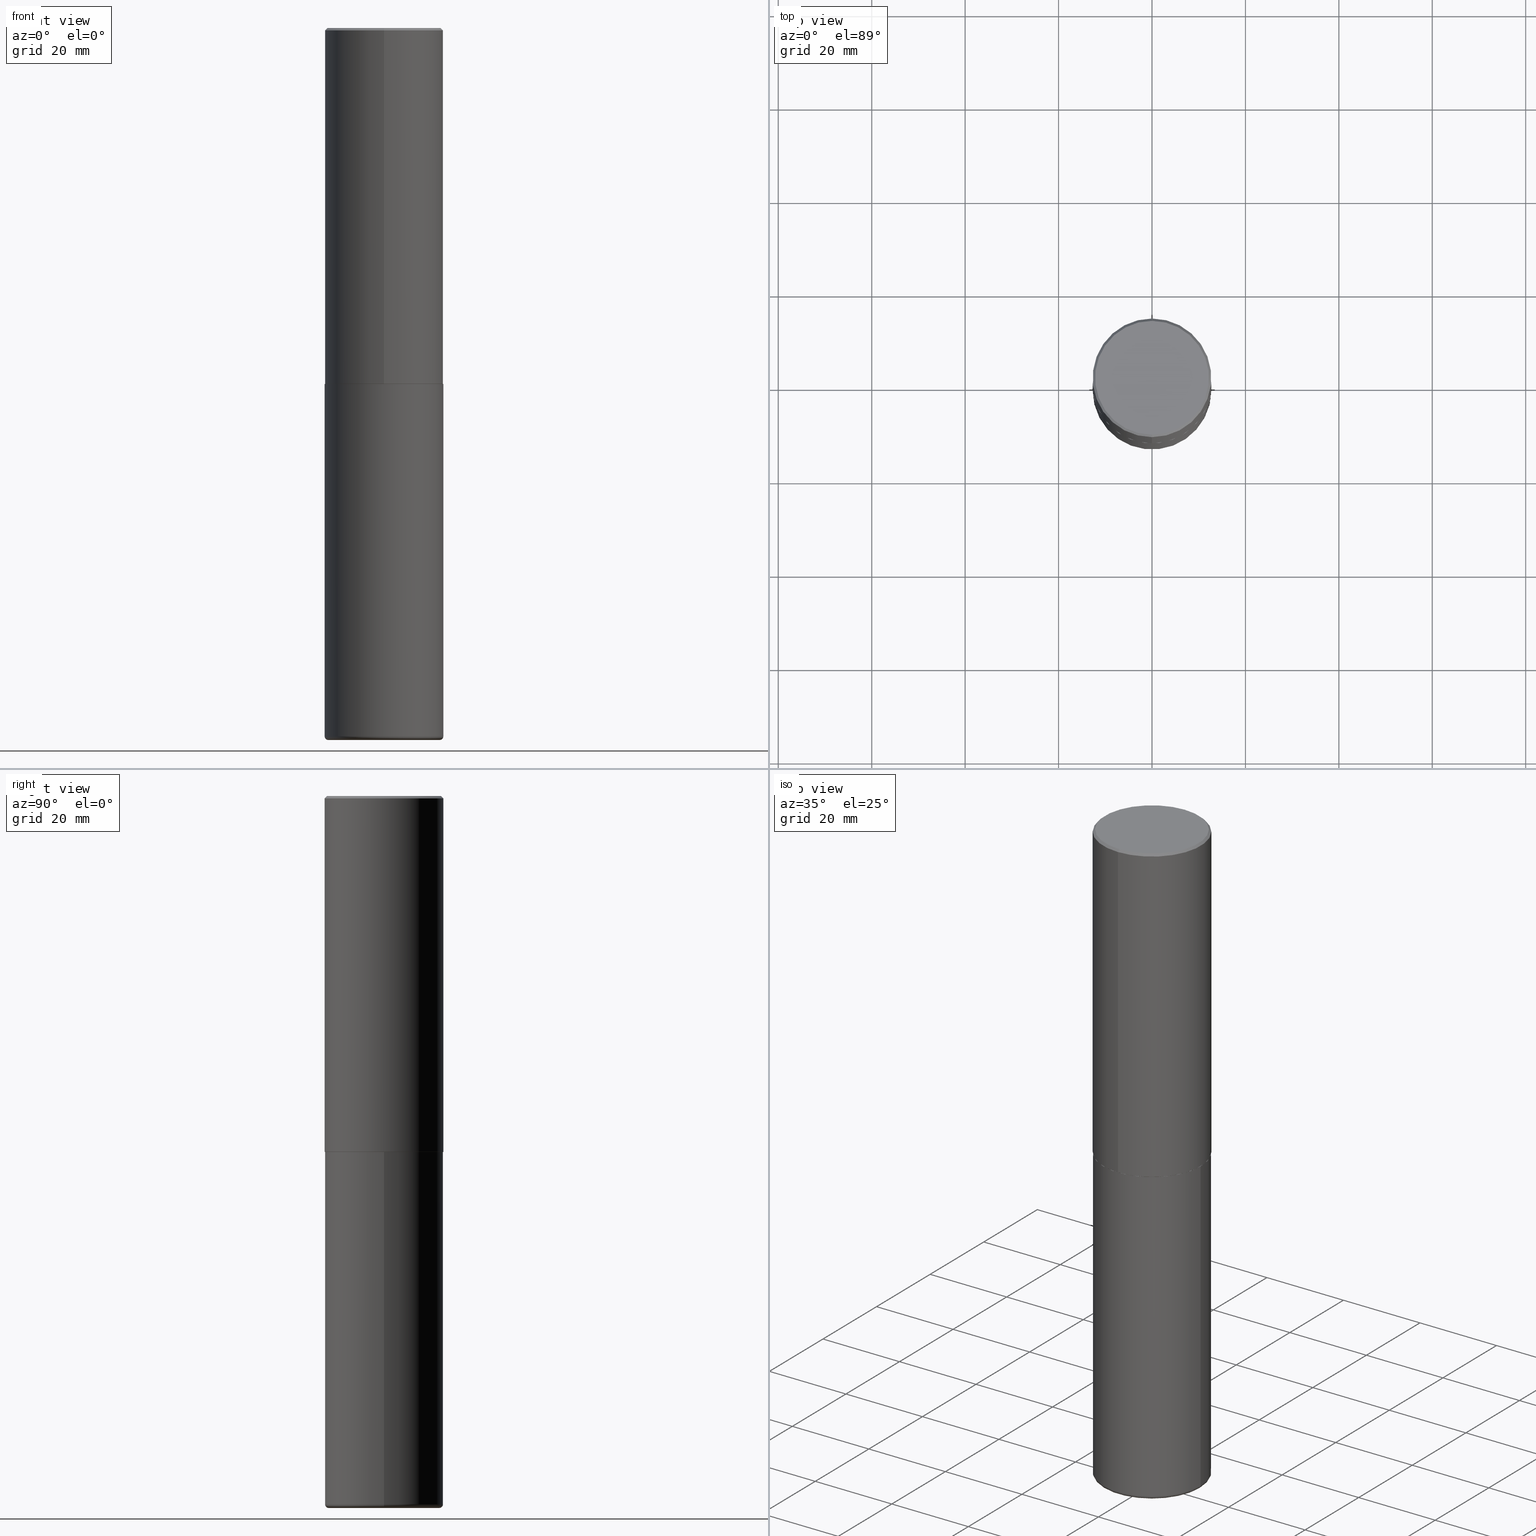
[diagram: canonical four-view strip — front | top / right | iso, engineering-drawing reading convention]
A machine part, canonical four-view strip (front | top / right | iso — engineering-drawing reading convention). The complete STEP part file that produces these views, byte-faithful:
ISO-10303-21;
HEADER;
FILE_DESCRIPTION (( 'STEP AP203' ),
    '1' );
FILE_NAME ('37711.STEP',
    '2024-03-02T08:55:26',
    ( '' ),
    ( '' ),
    'SwSTEP 2.0',
    'SolidWorks 2023',
    '' );
FILE_SCHEMA (( 'CONFIG_CONTROL_DESIGN' ));
ENDSEC;

DATA;
#1 = EDGE_CURVE ( 'NONE', #386, #226, #171, .T. ) ;
#2 = CARTESIAN_POINT ( 'NONE',  ( -3.430248998885764992E-15, -0.5000000000000001110, -0.01999999999999835937 ) ) ;
#3 = ORIENTED_EDGE ( 'NONE', *, *, #370, .T. ) ;
#4 = EDGE_CURVE ( 'NONE', #265, #143, #275, .T. ) ;
#5 = CARTESIAN_POINT ( 'NONE',  ( 7.332249203065438921E-29, -1.047340385386834930E-14, -2.999000000000000554 ) ) ;
#6 = CARTESIAN_POINT ( 'NONE',  ( 0.000000000000000000, 0.000000000000000000, 0.000000000000000000 ) ) ;
#7 = VERTEX_POINT ( 'NONE', #401 ) ;
#8 = SHAPE_DEFINITION_REPRESENTATION ( #118, #335 ) ;
#9 = CYLINDRICAL_SURFACE ( 'NONE', #248, 0.5000000000000000000 ) ;
#10 = DATE_AND_TIME ( #366, #378 ) ;
#11 = EDGE_LOOP ( 'NONE', ( #325, #292, #204, #389 ) ) ;
#12 = ADVANCED_FACE ( 'NONE', ( #45 ), #183, .T. ) ;
#13 = AXIS2_PLACEMENT_3D ( 'NONE', #179, #369, #334 ) ;
#14 = AXIS2_PLACEMENT_3D ( 'NONE', #288, #351, #189 ) ;
#15 = SECURITY_CLASSIFICATION_LEVEL ( 'unclassified' ) ;
#16 = ORIENTED_EDGE ( 'NONE', *, *, #205, .T. ) ;
#17 = EDGE_CURVE ( 'NONE', #265, #194, #102, .T. ) ;
#18 = ORIENTED_EDGE ( 'NONE', *, *, #26, .T. ) ;
#19 = DIRECTION ( 'NONE',  ( 1.000000000000000000, -6.982962677686263555E-15, 0.000000000000000000 ) ) ;
#20 = CONICAL_SURFACE ( 'NONE', #130, 0.4989999999999999991, 0.7853981633976873100 ) ;
#21 = CONICAL_SURFACE ( 'NONE', #368, 0.4989999999999999991, 0.7853981633976873100 ) ;
#22 = AXIS2_PLACEMENT_3D ( 'NONE', #361, #363, #237 ) ;
#23 = CARTESIAN_POINT ( 'NONE',  ( 0.000000000000000000, 0.000000000000000000, 0.000000000000000000 ) ) ;
#24 = CARTESIAN_POINT ( 'NONE',  ( 3.545608251442972496E-15, 0.4989999999999895630, -3.000000000000001776 ) ) ;
#25 = CARTESIAN_POINT ( 'NONE',  ( 7.334694101099137475E-29, -1.047689615258587837E-14, -3.000000000000000444 ) ) ;
#26 = EDGE_CURVE ( 'NONE', #81, #226, #414, .T. ) ;
#27 = CARTESIAN_POINT ( 'NONE',  ( 3.549160965121773789E-15, 0.4989999999999895630, -3.000000000000001776 ) ) ;
#28 = CC_DESIGN_PERSON_AND_ORGANIZATION_ASSIGNMENT ( #270, #170, ( #116 ) ) ;
#29 = CARTESIAN_POINT ( 'NONE',  ( -0.4699999999999999734, -1.750459273482110708E-14, -5.969999999999999751 ) ) ;
#30 = EDGE_CURVE ( 'NONE', #202, #224, #193, .T. ) ;
#31 = DIRECTION ( 'NONE',  ( -2.445468806185136877E-29, 3.491481338843145188E-15, 1.000000000000000000 ) ) ;
#32 = EDGE_LOOP ( 'NONE', ( #67, #328 ) ) ;
#33 = CARTESIAN_POINT ( 'NONE',  ( -0.5000000000000000000, 3.552713678800500929E-15, -2.459467545127452891E-29 ) ) ;
#34 = EDGE_LOOP ( 'NONE', ( #323, #196, #141, #391 ) ) ;
#35 = AXIS2_PLACEMENT_3D ( 'NONE', #50, #107, #233 ) ;
#36 = CARTESIAN_POINT ( 'NONE',  ( -3.491481338843133750E-15, -0.5000000000000001110, 1.746149358764313390E-15 ) ) ;
#37 = EDGE_LOOP ( 'NONE', ( #223, #158, #173, #192 ) ) ;
#38 = DIRECTION ( 'NONE',  ( 2.444898033699712212E-29, -3.492298717528625990E-15, -1.000000000000000000 ) ) ;
#39 = ORIENTED_EDGE ( 'NONE', *, *, #47, .F. ) ;
#40 = COORDINATED_UNIVERSAL_TIME_OFFSET ( 5, 0, .BEHIND. ) ;
#41 = ORIENTED_EDGE ( 'NONE', *, *, #272, .F. ) ;
#42 = DIRECTION ( 'NONE',  ( -2.445468806185136877E-29, 3.491481338843145188E-15, 1.000000000000000000 ) ) ;
#43 = CALENDAR_DATE ( 2024, 2, 3 ) ;
#44 = CARTESIAN_POINT ( 'NONE',  ( 0.000000000000000000, 0.000000000000000000, 0.000000000000000000 ) ) ;
#45 = FACE_OUTER_BOUND ( 'NONE', #11, .T. ) ;
#46 = VECTOR ( 'NONE', #119, 39.37007874015748143 ) ;
#47 = EDGE_CURVE ( 'NONE', #320, #143, #68, .T. ) ;
#48 = CIRCLE ( 'NONE', #14, 0.4699999999999999734 ) ;
#49 = DIRECTION ( 'NONE',  ( 0.000000000000000000, 0.000000000000000000, 1.000000000000000000 ) ) ;
#50 = CARTESIAN_POINT ( 'NONE',  ( -2.514251026725007597E-45, 3.591362713352002573E-31, 1.028366415314403880E-16 ) ) ;
#51 = DIRECTION ( 'NONE',  ( 6.982962677686265922E-15, 1.000000000000000000, -3.491643216902136408E-15 ) ) ;
#52 = DIRECTION ( 'NONE',  ( -2.444898033699712212E-29, 3.492298717528625990E-15, 1.000000000000000000 ) ) ;
#53 = AXIS2_PLACEMENT_3D ( 'NONE', #147, #404, #51 ) ;
#54 = APPROVAL_PERSON_ORGANIZATION ( #144, #99, #76 ) ;
#55 = DESIGN_CONTEXT ( 'detailed design', #120, 'design' ) ;
#56 = TOROIDAL_SURFACE ( 'NONE', #256, 0.4699999999999999734, 0.03000000000000077258 ) ;
#57 = DIRECTION ( 'NONE',  ( 2.438088387897960049E-29, -3.491481338843145188E-15, -1.000000000000000000 ) ) ;
#58 = DIRECTION ( 'NONE',  ( -2.445468806185136597E-29, 3.491481338843145583E-15, 1.000000000000000000 ) ) ;
#59 = PERSON ( 'UNSPECIFIED', 'UNSPECIFIED', 'UNSPECIFIED', ('UNSPECIFIED'), ('UNSPECIFIED'), ('UNSPECIFIED') ) ;
#60 = CYLINDRICAL_SURFACE ( 'NONE', #149, 0.5000000000000001110 ) ;
#61 = ADVANCED_FACE ( 'NONE', ( #301 ), #9, .T. ) ;
#62 = CARTESIAN_POINT ( 'NONE',  ( -3.484498376165373188E-15, -0.4990000000000104352, -2.999999999999998668 ) ) ;
#63 = ADVANCED_FACE ( 'NONE', ( #240 ), #56, .T. ) ;
#64 = DIRECTION ( 'NONE',  ( -4.937700262165728178E-15, -0.7071067811867141062, 0.7071067811863809283 ) ) ;
#65 = ORIENTED_EDGE ( 'NONE', *, *, #205, .F. ) ;
#66 = LENGTH_MEASURE_WITH_UNIT ( LENGTH_MEASURE( 0.02539999999999999897 ), #291 );
#67 = ORIENTED_EDGE ( 'NONE', *, *, #17, .T. ) ;
#68 = CIRCLE ( 'NONE', #276, 0.5000000000000000000 ) ;
#69 = LINE ( 'NONE', #36, #309 ) ;
#70 = APPROVAL_PERSON_ORGANIZATION ( #203, #411, #296 ) ;
#71 = EDGE_LOOP ( 'NONE', ( #393, #258, #164, #168 ) ) ;
#72 = FACE_OUTER_BOUND ( 'NONE', #267, .T. ) ;
#73 = EDGE_LOOP ( 'NONE', ( #138, #262, #384, #367 ) ) ;
#74 = APPLICATION_PROTOCOL_DEFINITION ( 'international standard', 'config_control_design', 1994, #380 ) ;
#75 = CC_DESIGN_PERSON_AND_ORGANIZATION_ASSIGNMENT ( #232, #105, ( #221 ) ) ;
#76 = APPROVAL_ROLE ( '' ) ;
#77 = CIRCLE ( 'NONE', #394, 0.4999999999999999445 ) ;
#78 = CARTESIAN_POINT ( 'NONE',  ( 4.889796067399450837E-31, -6.984597435057287381E-17, -0.02000000000000010797 ) ) ;
#79 = CONICAL_SURFACE ( 'NONE', #53, 0.5000000000000000000, 0.7853981633974446153 ) ;
#80 = EDGE_CURVE ( 'NONE', #143, #320, #111, .T. ) ;
#81 = VERTEX_POINT ( 'NONE', #339 ) ;
#82 = COORDINATED_UNIVERSAL_TIME_OFFSET ( 5, 0, .BEHIND. ) ;
#83 = ORIENTED_EDGE ( 'NONE', *, *, #148, .F. ) ;
#84 = ADVANCED_FACE ( 'NONE', ( #279 ), #407, .T. ) ;
#85 = DATE_AND_TIME ( #359, #235 ) ;
#86 = ADVANCED_FACE ( 'NONE', ( #92 ), #79, .T. ) ;
#87 = DIRECTION ( 'NONE',  ( -6.982962677686265922E-15, -1.000000000000000000, 3.491643216902136408E-15 ) ) ;
#88 = CARTESIAN_POINT ( 'NONE',  ( 3.351822085289407153E-15, 0.4799999999999999267, -1.624885063648019971E-15 ) ) ;
#89 = CC_DESIGN_PERSON_AND_ORGANIZATION_ASSIGNMENT ( #231, #264, ( #150 ) ) ;
#90 = CARTESIAN_POINT ( 'NONE',  ( -3.361644018908049661E-15, -0.4799999999999999267, 1.779140025945180744E-15 ) ) ;
#91 = DIRECTION ( 'NONE',  ( -6.982962677686266711E-15, -1.000000000000000000, 3.491481338843145583E-15 ) ) ;
#92 = FACE_OUTER_BOUND ( 'NONE', #71, .T. ) ;
#93 = DIRECTION ( 'NONE',  ( 2.438088387897960049E-29, -3.491481338843145188E-15, -1.000000000000000000 ) ) ;
#94 = ADVANCED_FACE ( 'NONE', ( #151 ), #60, .T. ) ;
#95 = CLOSED_SHELL ( 'NONE', ( #84, #63, #219, #61, #12, #234 ) ) ;
#96 = VECTOR ( 'NONE', #31, 39.37007874015748143 ) ;
#97 = CARTESIAN_POINT ( 'NONE',  ( -3.484498376165373188E-15, -0.4990000000000104352, -2.999999999999998668 ) ) ;
#98 = VERTEX_POINT ( 'NONE', #218 ) ;
#99 = APPROVAL ( #392, 'UNSPECIFIED' ) ;
#100 = EDGE_LOOP ( 'NONE', ( #413, #16, #39, #353 ) ) ;
#101 = CARTESIAN_POINT ( 'NONE',  ( 0.5000000000000003331, -2.433562493173670954E-14, -5.969999999999999751 ) ) ;
#102 = CIRCLE ( 'NONE', #35, 0.4799999999999999267 ) ;
#103 =( NAMED_UNIT ( * ) SI_UNIT ( $, .STERADIAN. ) SOLID_ANGLE_UNIT ( ) );
#104 = EDGE_LOOP ( 'NONE', ( #417, #3, #229, #83 ) ) ;
#105 = PERSON_AND_ORGANIZATION_ROLE ( 'creator' ) ;
#106 = PERSON_AND_ORGANIZATION ( #59, #277 ) ;
#107 = DIRECTION ( 'NONE',  ( -2.444898033699712212E-29, 3.492298717528625990E-15, 1.000000000000000000 ) ) ;
#108 = EDGE_CURVE ( 'NONE', #135, #202, #315, .T. ) ;
#109 = COORDINATED_UNIVERSAL_TIME_OFFSET ( 5, 0, .BEHIND. ) ;
#110 = APPROVAL ( #142, 'UNSPECIFIED' ) ;
#111 = CIRCLE ( 'NONE', #290, 0.5000000000000000000 ) ;
#112 = APPROVAL_ROLE ( '' ) ;
#113 = DIRECTION ( 'NONE',  ( 1.000000000000000000, -6.982962677686266711E-15, 4.876176775795935793E-29 ) ) ;
#114 = ORIENTED_EDGE ( 'NONE', *, *, #30, .T. ) ;
#115 = CARTESIAN_POINT ( 'NONE',  ( 1.459944877292526494E-28, -2.084414359289357934E-14, -5.969999999999999751 ) ) ;
#116 = PRODUCT ( '37711', '37711', '', ( #388 ) ) ;
#117 = FACE_OUTER_BOUND ( 'NONE', #382, .T. ) ;
#118 = PRODUCT_DEFINITION_SHAPE ( 'NONE', 'NONE',  #221 ) ;
#119 = DIRECTION ( 'NONE',  ( -2.444898033699711931E-29, 3.492298717528626385E-15, 1.000000000000000000 ) ) ;
#120 = APPLICATION_CONTEXT ( 'configuration controlled 3d designs of mechanical parts and assemblies' ) ;
#121 = CARTESIAN_POINT ( 'NONE',  ( 3.491481338843133355E-15, 0.4999999999999999445, -0.02000000000000185310 ) ) ;
#122 = CIRCLE ( 'NONE', #289, 0.03000000000000077258 ) ;
#123 = LOCAL_TIME ( 3, 55, 26.00000000000000000, #305 ) ;
#124 = PLANE ( 'NONE',  #254 ) ;
#125 = DIRECTION ( 'NONE',  ( 5.024295867789263036E-15, 0.7071067811867189912, 0.7071067811863760433 ) ) ;
#126 = DIRECTION ( 'NONE',  ( -6.982962677686266711E-15, -1.000000000000000000, 3.278217592397114284E-15 ) ) ;
#127 = ORIENTED_EDGE ( 'NONE', *, *, #80, .F. ) ;
#128 = CIRCLE ( 'NONE', #362, 0.4699999999999999734 ) ;
#129 = FACE_OUTER_BOUND ( 'NONE', #34, .T. ) ;
#130 = AXIS2_PLACEMENT_3D ( 'NONE', #247, #410, #251 ) ;
#131 = EDGE_LOOP ( 'NONE', ( #358, #175, #190, #145 ) ) ;
#132 = ORIENTED_EDGE ( 'NONE', *, *, #312, .F. ) ;
#133 = EDGE_CURVE ( 'NONE', #7, #386, #343, .T. ) ;
#134 = DIRECTION ( 'NONE',  ( 1.000000000000000000, -6.982962677686266711E-15, 0.000000000000000000 ) ) ;
#135 = VERTEX_POINT ( 'NONE', #27 ) ;
#136 = AXIS2_PLACEMENT_3D ( 'NONE', #195, #165, #134 ) ;
#137 = CARTESIAN_POINT ( 'NONE',  ( 7.334694101099137475E-29, -1.047689615258587837E-14, -3.000000000000000444 ) ) ;
#138 = ORIENTED_EDGE ( 'NONE', *, *, #403, .F. ) ;
#139 = DATE_TIME_ROLE ( 'creation_date' ) ;
#140 = EDGE_LOOP ( 'NONE', ( #307, #18 ) ) ;
#141 = ORIENTED_EDGE ( 'NONE', *, *, #297, .T. ) ;
#142 = APPROVAL_STATUS ( 'not_yet_approved' ) ;
#143 = VERTEX_POINT ( 'NONE', #121 ) ;
#144 = PERSON_AND_ORGANIZATION ( #59, #277 ) ;
#145 = ORIENTED_EDGE ( 'NONE', *, *, #297, .F. ) ;
#146 = CARTESIAN_POINT ( 'NONE',  ( 0.5000000000000000000, -3.491481338843133355E-15, 2.438088387897967896E-29 ) ) ;
#147 = CARTESIAN_POINT ( 'NONE',  ( 4.889796067399450837E-31, -6.984597435057287381E-17, -0.02000000000000010797 ) ) ;
#148 = EDGE_CURVE ( 'NONE', #98, #386, #122, .T. ) ;
#149 = AXIS2_PLACEMENT_3D ( 'NONE', #278, #345, #187 ) ;
#150 = SECURITY_CLASSIFICATION ( '', '', #15 ) ;
#151 = FACE_OUTER_BOUND ( 'NONE', #100, .T. ) ;
#152 = CARTESIAN_POINT ( 'NONE',  ( -3.491481338843061569E-15, -0.5000000000000107692, -2.998999999999998778 ) ) ;
#153 = DIRECTION ( 'NONE',  ( -6.982962677686265922E-15, -1.000000000000000000, 3.284787166730577015E-15 ) ) ;
#154 = AXIS2_PLACEMENT_3D ( 'NONE', #313, #57, #185 ) ;
#155 = CARTESIAN_POINT ( 'NONE',  ( 0.000000000000000000, 0.000000000000000000, 0.000000000000000000 ) ) ;
#156 = CC_DESIGN_PERSON_AND_ORGANIZATION_ASSIGNMENT ( #300, #327, ( #330 ) ) ;
#157 = CARTESIAN_POINT ( 'NONE',  ( 7.334694101099137475E-29, -1.047689615258587837E-14, -3.000000000000000444 ) ) ;
#158 = ORIENTED_EDGE ( 'NONE', *, *, #403, .T. ) ;
#159 = DIRECTION ( 'NONE',  ( -6.982962677686265922E-15, -1.000000000000000000, 3.284787166730577015E-15 ) ) ;
#160 = CIRCLE ( 'NONE', #337, 0.4989999999999999991 ) ;
#161 = PLANE ( 'NONE',  #255 ) ;
#162 = AXIS2_PLACEMENT_3D ( 'NONE', #280, #58, #19 ) ;
#163 = ADVANCED_FACE ( 'NONE', ( #285 ), #20, .T. ) ;
#164 = ORIENTED_EDGE ( 'NONE', *, *, #47, .T. ) ;
#165 = DIRECTION ( 'NONE',  ( -2.445468806185136597E-29, 3.491481338843145583E-15, 1.000000000000000000 ) ) ;
#166 = VERTEX_POINT ( 'NONE', #181 ) ;
#167 = DIRECTION ( 'NONE',  ( -4.851104656540946131E-15, -0.7071067811865473507, -0.7071067811865476838 ) ) ;
#168 = ORIENTED_EDGE ( 'NONE', *, *, #4, .F. ) ;
#169 = ADVANCED_FACE ( 'NONE', ( #374 ), #340, .F. ) ;
#170 = PERSON_AND_ORGANIZATION_ROLE ( 'design_owner' ) ;
#171 = LINE ( 'NONE', #146, #329 ) ;
#172 = APPLICATION_PROTOCOL_DEFINITION ( 'international standard', 'config_control_design', 1994, #120 ) ;
#173 = ORIENTED_EDGE ( 'NONE', *, *, #347, .F. ) ;
#174 = APPROVAL_DATE_TIME ( #197, #411 ) ;
#175 = ORIENTED_EDGE ( 'NONE', *, *, #108, .T. ) ;
#176 = CLOSED_SHELL ( 'NONE', ( #163, #94, #86, #284, #180, #372, #409, #169 ) ) ;
#177 = DIRECTION ( 'NONE',  ( -2.444898033699712212E-29, 3.492298717528625990E-15, 1.000000000000000000 ) ) ;
#178 = LOCAL_TIME ( 3, 55, 26.00000000000000000, #82 ) ;
#179 = CARTESIAN_POINT ( 'NONE',  ( 7.332249203065438921E-29, -1.047340385386834930E-14, -2.999000000000000554 ) ) ;
#180 = ADVANCED_FACE ( 'NONE', ( #117 ), #406, .T. ) ;
#181 = CARTESIAN_POINT ( 'NONE',  ( -0.4699999999999999734, -1.745038354453973785E-14, -6.000000000000001776 ) ) ;
#182 = DIRECTION ( 'NONE',  ( 2.444898033699711371E-29, -3.492298717528626385E-15, -1.000000000000000000 ) ) ;
#183 = TOROIDAL_SURFACE ( 'NONE', #321, 0.4699999999999999734, 0.03000000000000077258 ) ;
#184 = CIRCLE ( 'NONE', #136, 0.5000000000000000000 ) ;
#185 = DIRECTION ( 'NONE',  ( -1.000000000000000000, 6.982962677686265922E-15, -4.876176775795935793E-29 ) ) ;
#186 = DIRECTION ( 'NONE',  ( 1.000000000000000000, -6.982962677686217012E-15, 0.000000000000000000 ) ) ;
#187 = DIRECTION ( 'NONE',  ( -6.982962677686265922E-15, -1.000000000000000000, 3.492298717528625990E-15 ) ) ;
#188 = CARTESIAN_POINT ( 'NONE',  ( 1.467281283711082406E-28, -2.094888803305887902E-14, -6.000000000000001776 ) ) ;
#189 = DIRECTION ( 'NONE',  ( 1.000000000000000000, -6.982962677686262766E-15, 0.000000000000000000 ) ) ;
#190 = ORIENTED_EDGE ( 'NONE', *, *, #331, .F. ) ;
#191 = CARTESIAN_POINT ( 'NONE',  ( -3.430248998885764992E-15, -0.5000000000000001110, -0.01999999999999835937 ) ) ;
#192 = ORIENTED_EDGE ( 'NONE', *, *, #1, .F. ) ;
#193 = CIRCLE ( 'NONE', #13, 0.5000000000000002220 ) ;
#194 = VERTEX_POINT ( 'NONE', #90 ) ;
#195 = CARTESIAN_POINT ( 'NONE',  ( 7.336406418555409790E-29, -1.047444401652943635E-14, -3.000000000000000444 ) ) ;
#196 = ORIENTED_EDGE ( 'NONE', *, *, #211, .T. ) ;
#197 = DATE_AND_TIME ( #266, #123 ) ;
#198 = DIRECTION ( 'NONE',  ( -6.982962677686265922E-15, -1.000000000000000000, 3.491643216902136408E-15 ) ) ;
#199 = CIRCLE ( 'NONE', #282, 0.4799999999999999267 ) ;
#200 = CC_DESIGN_SECURITY_CLASSIFICATION ( #150, ( #330 ) ) ;
#201 = UNCERTAINTY_MEASURE_WITH_UNIT (LENGTH_MEASURE( 1.000000000000000082E-05 ), #385, 'distance_accuracy_value', 'NONE');
#202 = VERTEX_POINT ( 'NONE', #213 ) ;
#203 = PERSON_AND_ORGANIZATION ( #59, #277 ) ;
#204 = ORIENTED_EDGE ( 'NONE', *, *, #148, .T. ) ;
#205 = EDGE_CURVE ( 'NONE', #202, #143, #314, .T. ) ;
#206 = DIRECTION ( 'NONE',  ( -2.445468806185136597E-29, 3.491481338843145583E-15, 1.000000000000000000 ) ) ;
#207 = EDGE_CURVE ( 'NONE', #194, #265, #199, .T. ) ;
#208 = CONICAL_SURFACE ( 'NONE', #238, 0.5000000000000000000, 0.7853981633974446153 ) ;
#209 = DIRECTION ( 'NONE',  ( -2.444898033699712212E-29, 3.492298717528625990E-15, 1.000000000000000000 ) ) ;
#210 = AXIS2_PLACEMENT_3D ( 'NONE', #5, #376, #126 ) ;
#211 = EDGE_CURVE ( 'NONE', #135, #294, #160, .T. ) ;
#212 = DIRECTION ( 'NONE',  ( 1.000000000000000000, -6.982962677686266711E-15, 4.876176775795935793E-29 ) ) ;
#213 = CARTESIAN_POINT ( 'NONE',  ( 3.552713678800539584E-15, 0.4999999999999898970, -2.999000000000001886 ) ) ;
#214 = PRODUCT_RELATED_PRODUCT_CATEGORY ( 'detail', '', ( #116 ) ) ;
#215 = CARTESIAN_POINT ( 'NONE',  ( 0.4699999999999999734, -2.412613605140612280E-14, -5.969999999999999751 ) ) ;
#216 =( GEOMETRIC_REPRESENTATION_CONTEXT ( 3 ) GLOBAL_UNCERTAINTY_ASSIGNED_CONTEXT ( ( #201 ) ) GLOBAL_UNIT_ASSIGNED_CONTEXT ( ( #385, #259, #103 ) ) REPRESENTATION_CONTEXT ( 'NONE', 'WORKASPACE' ) );
#217 = AXIS2_PLACEMENT_3D ( 'NONE', #88, #182, #308 ) ;
#218 = CARTESIAN_POINT ( 'NONE',  ( 0.4699999999999999734, -2.423088049157142248E-14, -6.000000000000001776 ) ) ;
#219 = ADVANCED_FACE ( 'NONE', ( #250 ), #344, .F. ) ;
#220 = DIRECTION ( 'NONE',  ( -1.000000000000000000, 6.982962677686265922E-15, -4.876176775795935793E-29 ) ) ;
#221 = PRODUCT_DEFINITION ( 'UNKNOWN', '', #330, #55 ) ;
#222 = DIRECTION ( 'NONE',  ( -2.444898033699711931E-29, 3.492298717528626385E-15, 1.000000000000000000 ) ) ;
#223 = ORIENTED_EDGE ( 'NONE', *, *, #253, .T. ) ;
#224 = VERTEX_POINT ( 'NONE', #152 ) ;
#225 = LINE ( 'NONE', #191, #268 ) ;
#226 = VERTEX_POINT ( 'NONE', #281 ) ;
#227 = VECTOR ( 'NONE', #365, 39.37007874015748143 ) ;
#228 = CARTESIAN_POINT ( 'NONE',  ( 1.459944877292526494E-28, -2.084414359289357934E-14, -5.969999999999999751 ) ) ;
#229 = ORIENTED_EDGE ( 'NONE', *, *, #253, .F. ) ;
#230 = DIMENSIONAL_EXPONENTS ( 1.000000000000000000, 0.000000000000000000, 0.000000000000000000, 0.000000000000000000, 0.000000000000000000, 0.000000000000000000, 0.000000000000000000 ) ;
#231 = PERSON_AND_ORGANIZATION ( #59, #277 ) ;
#232 = PERSON_AND_ORGANIZATION ( #59, #277 ) ;
#233 = DIRECTION ( 'NONE',  ( -6.982962677686265922E-15, -1.000000000000000000, 3.492298717528625990E-15 ) ) ;
#234 = ADVANCED_FACE ( 'NONE', ( #408 ), #124, .T. ) ;
#235 = LOCAL_TIME ( 3, 55, 26.00000000000000000, #40 ) ;
#236 = COORDINATED_UNIVERSAL_TIME_OFFSET ( 5, 0, .BEHIND. ) ;
#237 = DIRECTION ( 'NONE',  ( 1.000000000000000000, -6.982962677686266711E-15, 0.000000000000000000 ) ) ;
#238 = AXIS2_PLACEMENT_3D ( 'NONE', #316, #38, #383 ) ;
#239 = PERSON_AND_ORGANIZATION_ROLE ( 'creator' ) ;
#240 = FACE_OUTER_BOUND ( 'NONE', #104, .T. ) ;
#241 = PERSON_AND_ORGANIZATION ( #59, #277 ) ;
#242 = CARTESIAN_POINT ( 'NONE',  ( 4.889796067399450837E-31, -6.984597435057287381E-17, -0.02000000000000010797 ) ) ;
#243 = DIRECTION ( 'NONE',  ( -2.445468806185136597E-29, 3.491481338843145583E-15, 1.000000000000000000 ) ) ;
#244 = DIRECTION ( 'NONE',  ( -2.444898033699712212E-29, 3.492298717528625990E-15, 1.000000000000000000 ) ) ;
#245 = EDGE_CURVE ( 'NONE', #294, #135, #311, .T. ) ;
#246 = CARTESIAN_POINT ( 'NONE',  ( 3.552713678800501718E-15, 0.5000000000000001110, -1.746149358764313390E-15 ) ) ;
#247 = CARTESIAN_POINT ( 'NONE',  ( 7.334694101099137475E-29, -1.047689615258587837E-14, -3.000000000000000444 ) ) ;
#248 = AXIS2_PLACEMENT_3D ( 'NONE', #44, #206, #113 ) ;
#249 = CC_DESIGN_APPROVAL ( #411, ( #221 ) ) ;
#250 = FACE_OUTER_BOUND ( 'NONE', #140, .T. ) ;
#251 = DIRECTION ( 'NONE',  ( -6.982962677686265922E-15, -1.000000000000000000, 3.284787166730577015E-15 ) ) ;
#252 = DIRECTION ( 'NONE',  ( -2.445468806185136597E-29, 3.491481338843145583E-15, 1.000000000000000000 ) ) ;
#253 = EDGE_CURVE ( 'NONE', #386, #7, #77, .T. ) ;
#254 = AXIS2_PLACEMENT_3D ( 'NONE', #375, #93, #220 ) ;
#255 = AXIS2_PLACEMENT_3D ( 'NONE', #257, #354, #322 ) ;
#256 = AXIS2_PLACEMENT_3D ( 'NONE', #306, #273, #400 ) ;
#257 = CARTESIAN_POINT ( 'NONE',  ( 7.334694101099137475E-29, -1.047689615258587837E-14, -3.000000000000000444 ) ) ;
#258 = ORIENTED_EDGE ( 'NONE', *, *, #272, .T. ) ;
#259 =( NAMED_UNIT ( * ) PLANE_ANGLE_UNIT ( ) SI_UNIT ( $, .RADIAN. ) );
#260 = ORIENTED_EDGE ( 'NONE', *, *, #326, .F. ) ;
#261 = DIRECTION ( 'NONE',  ( -6.982962677686265922E-15, -1.000000000000000000, 3.284787166730577015E-15 ) ) ;
#262 = ORIENTED_EDGE ( 'NONE', *, *, #133, .T. ) ;
#263 = CC_DESIGN_PERSON_AND_ORGANIZATION_ASSIGNMENT ( #106, #239, ( #330 ) ) ;
#264 = PERSON_AND_ORGANIZATION_ROLE ( 'classification_officer' ) ;
#265 = VERTEX_POINT ( 'NONE', #348 ) ;
#266 = CALENDAR_DATE ( 2024, 2, 3 ) ;
#267 = EDGE_LOOP ( 'NONE', ( #398, #271 ) ) ;
#268 = VECTOR ( 'NONE', #167, 39.37007874015748143 ) ;
#269 = CC_DESIGN_APPROVAL ( #99, ( #150 ) ) ;
#270 = PERSON_AND_ORGANIZATION ( #59, #277 ) ;
#271 = ORIENTED_EDGE ( 'NONE', *, *, #211, .F. ) ;
#272 = EDGE_CURVE ( 'NONE', #194, #320, #225, .T. ) ;
#273 = DIRECTION ( 'NONE',  ( -2.445468806185136597E-29, 3.491481338843145583E-15, 1.000000000000000000 ) ) ;
#274 = MANIFOLD_SOLID_BREP ( 'Body-Move/Copy2[2]', #176 ) ;
#275 = LINE ( 'NONE', #303, #227 ) ;
#276 = AXIS2_PLACEMENT_3D ( 'NONE', #78, #209, #198 ) ;
#277 = ORGANIZATION ( 'UNSPECIFIED', 'UNSPECIFIED', '' ) ;
#278 = CARTESIAN_POINT ( 'NONE',  ( 0.000000000000000000, 0.000000000000000000, 0.000000000000000000 ) ) ;
#279 = FACE_OUTER_BOUND ( 'NONE', #37, .T. ) ;
#280 = CARTESIAN_POINT ( 'NONE',  ( 1.459944877292526494E-28, -2.084414359289357934E-14, -5.969999999999999751 ) ) ;
#281 = CARTESIAN_POINT ( 'NONE',  ( 0.5000000000000000000, -1.396592535537257129E-14, -3.000000000000000444 ) ) ;
#282 = AXIS2_PLACEMENT_3D ( 'NONE', #373, #52, #342 ) ;
#283 = APPROVAL_PERSON_ORGANIZATION ( #241, #110, #112 ) ;
#284 = ADVANCED_FACE ( 'NONE', ( #377 ), #208, .T. ) ;
#285 = FACE_OUTER_BOUND ( 'NONE', #131, .T. ) ;
#286 = DIRECTION ( 'NONE',  ( 7.105427357601001859E-15, 1.000000000000000000, -3.491481338843145583E-15 ) ) ;
#287 = EDGE_LOOP ( 'NONE', ( #260, #132 ) ) ;
#288 = CARTESIAN_POINT ( 'NONE',  ( 1.467281283711082406E-28, -2.094888803305887902E-14, -6.000000000000001776 ) ) ;
#289 = AXIS2_PLACEMENT_3D ( 'NONE', #215, #91, #186 ) ;
#290 = AXIS2_PLACEMENT_3D ( 'NONE', #242, #177, #87 ) ;
#291 =( LENGTH_UNIT ( ) NAMED_UNIT ( * ) SI_UNIT ( $, .METRE. ) );
#292 = ORIENTED_EDGE ( 'NONE', *, *, #312, .T. ) ;
#293 = LINE ( 'NONE', #33, #96 ) ;
#294 = VERTEX_POINT ( 'NONE', #97 ) ;
#295 = DIRECTION ( 'NONE',  ( 1.000000000000000000, -6.982962677686262766E-15, 0.000000000000000000 ) ) ;
#296 = APPROVAL_ROLE ( '' ) ;
#297 = EDGE_CURVE ( 'NONE', #294, #224, #415, .T. ) ;
#298 = ORIENTED_EDGE ( 'NONE', *, *, #299, .T. ) ;
#299 = EDGE_CURVE ( 'NONE', #224, #320, #69, .T. ) ;
#300 = PERSON_AND_ORGANIZATION ( #59, #277 ) ;
#301 = FACE_OUTER_BOUND ( 'NONE', #73, .T. ) ;
#302 = DIRECTION ( 'NONE',  ( 1.000000000000000000, 0.000000000000000000, 0.000000000000000000 ) ) ;
#303 = CARTESIAN_POINT ( 'NONE',  ( 3.491481338843133355E-15, 0.4999999999999999445, -0.02000000000000185310 ) ) ;
#304 = AXIS2_PLACEMENT_3D ( 'NONE', #155, #346, #212 ) ;
#305 = COORDINATED_UNIVERSAL_TIME_OFFSET ( 5, 0, .BEHIND. ) ;
#306 = CARTESIAN_POINT ( 'NONE',  ( 1.459944877292526494E-28, -2.084414359289357934E-14, -5.969999999999999751 ) ) ;
#307 = ORIENTED_EDGE ( 'NONE', *, *, #347, .T. ) ;
#308 = DIRECTION ( 'NONE',  ( 6.982962677686265922E-15, 1.000000000000000000, -3.492298717528626385E-15 ) ) ;
#309 = VECTOR ( 'NONE', #222, 39.37007874015748143 ) ;
#310 = DIRECTION ( 'NONE',  ( -2.444898033699712212E-29, 3.492298717528625990E-15, 1.000000000000000000 ) ) ;
#311 = CIRCLE ( 'NONE', #387, 0.4989999999999999991 ) ;
#312 = EDGE_CURVE ( 'NONE', #166, #98, #128, .T. ) ;
#313 = CARTESIAN_POINT ( 'NONE',  ( 7.336406418555409790E-29, -1.047444401652943635E-14, -3.000000000000000444 ) ) ;
#314 = LINE ( 'NONE', #246, #46 ) ;
#315 = LINE ( 'NONE', #24, #396 ) ;
#316 = CARTESIAN_POINT ( 'NONE',  ( 4.889796067399450837E-31, -6.984597435057287381E-17, -0.02000000000000010797 ) ) ;
#317 = DIRECTION ( 'NONE',  ( -2.444898033699712212E-29, 3.492298717528625990E-15, 1.000000000000000000 ) ) ;
#318 = ORIENTED_EDGE ( 'NONE', *, *, #4, .T. ) ;
#319 = DIRECTION ( 'NONE',  ( -2.445468806185136597E-29, 3.491481338843145583E-15, 1.000000000000000000 ) ) ;
#320 = VERTEX_POINT ( 'NONE', #2 ) ;
#321 = AXIS2_PLACEMENT_3D ( 'NONE', #115, #243, #332 ) ;
#322 = DIRECTION ( 'NONE',  ( -6.982962677686265922E-15, -1.000000000000000000, 3.492298717528626385E-15 ) ) ;
#323 = ORIENTED_EDGE ( 'NONE', *, *, #108, .F. ) ;
#324 = DIRECTION ( 'NONE',  ( -2.444898033699712212E-29, 3.492298717528625990E-15, 1.000000000000000000 ) ) ;
#325 = ORIENTED_EDGE ( 'NONE', *, *, #370, .F. ) ;
#326 = EDGE_CURVE ( 'NONE', #98, #166, #48, .T. ) ;
#327 = PERSON_AND_ORGANIZATION_ROLE ( 'design_supplier' ) ;
#328 = ORIENTED_EDGE ( 'NONE', *, *, #207, .T. ) ;
#329 = VECTOR ( 'NONE', #42, 39.37007874015748143 ) ;
#330 = PRODUCT_DEFINITION_FORMATION_WITH_SPECIFIED_SOURCE ( 'ANY', '', #116, .NOT_KNOWN. ) ;
#331 = EDGE_CURVE ( 'NONE', #224, #202, #338, .T. ) ;
#332 = DIRECTION ( 'NONE',  ( 1.000000000000000000, -6.982962677686268288E-15, 4.883557194083112901E-29 ) ) ;
#333 = DATE_TIME_ROLE ( 'classification_date' ) ;
#334 = DIRECTION ( 'NONE',  ( -6.982962677686266711E-15, -1.000000000000000000, 3.278217592397114284E-15 ) ) ;
#335 = ADVANCED_BREP_SHAPE_REPRESENTATION ( '37711', ( #405, #274, #395 ), #216 ) ;
#336 = DATE_AND_TIME ( #43, #349 ) ;
#337 = AXIS2_PLACEMENT_3D ( 'NONE', #25, #310, #153 ) ;
#338 = CIRCLE ( 'NONE', #210, 0.5000000000000002220 ) ;
#339 = CARTESIAN_POINT ( 'NONE',  ( -0.5000000000000000000, -1.210658012591100613E-14, -3.000000000000000444 ) ) ;
#340 = PLANE ( 'NONE',  #217 ) ;
#341 = CC_DESIGN_DATE_AND_TIME_ASSIGNMENT ( #10, #139, ( #221 ) ) ;
#342 = DIRECTION ( 'NONE',  ( -6.982962677686265922E-15, -1.000000000000000000, 3.492298717528625990E-15 ) ) ;
#343 = CIRCLE ( 'NONE', #162, 0.4999999999999999445 ) ;
#344 = PLANE ( 'NONE',  #154 ) ;
#345 = DIRECTION ( 'NONE',  ( -2.444898033699712212E-29, 3.492298717528625990E-15, 1.000000000000000000 ) ) ;
#346 = DIRECTION ( 'NONE',  ( -2.445468806185136597E-29, 3.491481338843145583E-15, 1.000000000000000000 ) ) ;
#347 = EDGE_CURVE ( 'NONE', #226, #81, #184, .T. ) ;
#348 = CARTESIAN_POINT ( 'NONE',  ( 3.421651712066270057E-15, 0.4799999999999999267, -1.573466742882299844E-15 ) ) ;
#349 = LOCAL_TIME ( 3, 55, 26.00000000000000000, #109 ) ;
#350 = CC_DESIGN_DATE_AND_TIME_ASSIGNMENT ( #360, #333, ( #150 ) ) ;
#351 = DIRECTION ( 'NONE',  ( -2.445468806185136597E-29, 3.491481338843145583E-15, 1.000000000000000000 ) ) ;
#352 = ORIENTED_EDGE ( 'NONE', *, *, #80, .T. ) ;
#353 = ORIENTED_EDGE ( 'NONE', *, *, #299, .F. ) ;
#354 = DIRECTION ( 'NONE',  ( -2.444898033699711371E-29, 3.492298717528626385E-15, 1.000000000000000000 ) ) ;
#355 = EDGE_LOOP ( 'NONE', ( #41, #418, #318, #352 ) ) ;
#356 = AXIS2_PLACEMENT_3D ( 'NONE', #23, #244, #371 ) ;
#357 = CC_DESIGN_APPROVAL ( #110, ( #330 ) ) ;
#358 = ORIENTED_EDGE ( 'NONE', *, *, #245, .T. ) ;
#359 = CALENDAR_DATE ( 2024, 2, 3 ) ;
#360 = DATE_AND_TIME ( #390, #178 ) ;
#361 = CARTESIAN_POINT ( 'NONE',  ( 7.336406418555409790E-29, -1.047444401652943635E-14, -3.000000000000000444 ) ) ;
#362 = AXIS2_PLACEMENT_3D ( 'NONE', #188, #319, #295 ) ;
#363 = DIRECTION ( 'NONE',  ( -2.445468806185136597E-29, 3.491481338843145583E-15, 1.000000000000000000 ) ) ;
#364 = APPROVAL_DATE_TIME ( #85, #110 ) ;
#365 = DIRECTION ( 'NONE',  ( 4.937700262164529898E-15, 0.7071067811865424657, -0.7071067811865525687 ) ) ;
#366 = CALENDAR_DATE ( 2024, 2, 3 ) ;
#367 = ORIENTED_EDGE ( 'NONE', *, *, #26, .F. ) ;
#368 = AXIS2_PLACEMENT_3D ( 'NONE', #137, #317, #261 ) ;
#369 = DIRECTION ( 'NONE',  ( -2.444898033699712212E-29, 3.492298717528625990E-15, 1.000000000000000000 ) ) ;
#370 = EDGE_CURVE ( 'NONE', #166, #7, #416, .T. ) ;
#371 = DIRECTION ( 'NONE',  ( -6.982962677686265922E-15, -1.000000000000000000, 3.492298717528625990E-15 ) ) ;
#372 = ADVANCED_FACE ( 'NONE', ( #129 ), #21, .T. ) ;
#373 = CARTESIAN_POINT ( 'NONE',  ( -2.514251026725007597E-45, 3.591362713352002573E-31, 1.028366415314403880E-16 ) ) ;
#374 = FACE_OUTER_BOUND ( 'NONE', #32, .T. ) ;
#375 = CARTESIAN_POINT ( 'NONE',  ( 4.931676200070994304E-29, -3.489875012836576194E-14, -6.000000000000001776 ) ) ;
#376 = DIRECTION ( 'NONE',  ( -2.444898033699712212E-29, 3.492298717528625990E-15, 1.000000000000000000 ) ) ;
#377 = FACE_OUTER_BOUND ( 'NONE', #355, .T. ) ;
#378 = LOCAL_TIME ( 3, 55, 26.00000000000000000, #236 ) ;
#379 = VECTOR ( 'NONE', #64, 39.37007874015748143 ) ;
#380 = APPLICATION_CONTEXT ( 'configuration controlled 3d designs of mechanical parts and assemblies' ) ;
#381 = DIRECTION ( 'NONE',  ( 1.000000000000000000, -6.982962677686263555E-15, 0.000000000000000000 ) ) ;
#382 = EDGE_LOOP ( 'NONE', ( #65, #114, #298, #127 ) ) ;
#383 = DIRECTION ( 'NONE',  ( 6.982962677686265922E-15, 1.000000000000000000, -3.491643216902136408E-15 ) ) ;
#384 = ORIENTED_EDGE ( 'NONE', *, *, #1, .T. ) ;
#385 =( CONVERSION_BASED_UNIT ( 'INCH', #66 ) LENGTH_UNIT ( ) NAMED_UNIT ( #230 ) );
#386 = VERTEX_POINT ( 'NONE', #101 ) ;
#387 = AXIS2_PLACEMENT_3D ( 'NONE', #157, #324, #159 ) ;
#388 = MECHANICAL_CONTEXT ( 'NONE', #380, 'mechanical' ) ;
#389 = ORIENTED_EDGE ( 'NONE', *, *, #133, .F. ) ;
#390 = CALENDAR_DATE ( 2024, 2, 3 ) ;
#391 = ORIENTED_EDGE ( 'NONE', *, *, #30, .F. ) ;
#392 = APPROVAL_STATUS ( 'not_yet_approved' ) ;
#393 = ORIENTED_EDGE ( 'NONE', *, *, #207, .F. ) ;
#394 = AXIS2_PLACEMENT_3D ( 'NONE', #228, #252, #381 ) ;
#395 = AXIS2_PLACEMENT_3D ( 'NONE', #6, #49, #302 ) ;
#396 = VECTOR ( 'NONE', #125, 39.37007874015748143 ) ;
#397 = APPROVAL_STATUS ( 'not_yet_approved' ) ;
#398 = ORIENTED_EDGE ( 'NONE', *, *, #245, .F. ) ;
#399 = APPROVAL_DATE_TIME ( #336, #99 ) ;
#400 = DIRECTION ( 'NONE',  ( 1.000000000000000000, -6.982962677686268288E-15, 4.883557194083112901E-29 ) ) ;
#401 = CARTESIAN_POINT ( 'NONE',  ( -0.5000000000000003331, -1.729142991409307210E-14, -5.969999999999999751 ) ) ;
#402 = AXIS2_PLACEMENT_3D ( 'NONE', #29, #286, #412 ) ;
#403 = EDGE_CURVE ( 'NONE', #7, #81, #293, .T. ) ;
#404 = DIRECTION ( 'NONE',  ( 2.444898033699712212E-29, -3.492298717528625990E-15, -1.000000000000000000 ) ) ;
#405 = MANIFOLD_SOLID_BREP ( 'Body-Move/Copy2[1]', #95 ) ;
#406 = CYLINDRICAL_SURFACE ( 'NONE', #356, 0.5000000000000001110 ) ;
#407 = CYLINDRICAL_SURFACE ( 'NONE', #304, 0.5000000000000000000 ) ;
#408 = FACE_OUTER_BOUND ( 'NONE', #287, .T. ) ;
#409 = ADVANCED_FACE ( 'NONE', ( #72 ), #161, .F. ) ;
#410 = DIRECTION ( 'NONE',  ( -2.444898033699712212E-29, 3.492298717528625990E-15, 1.000000000000000000 ) ) ;
#411 = APPROVAL ( #397, 'UNSPECIFIED' ) ;
#412 = DIRECTION ( 'NONE',  ( -1.000000000000000000, 7.105427357601001859E-15, 0.000000000000000000 ) ) ;
#413 = ORIENTED_EDGE ( 'NONE', *, *, #331, .T. ) ;
#414 = CIRCLE ( 'NONE', #22, 0.5000000000000000000 ) ;
#415 = LINE ( 'NONE', #62, #379 ) ;
#416 = CIRCLE ( 'NONE', #402, 0.03000000000000077258 ) ;
#417 = ORIENTED_EDGE ( 'NONE', *, *, #326, .T. ) ;
#418 = ORIENTED_EDGE ( 'NONE', *, *, #17, .F. ) ;
ENDSEC;
END-ISO-10303-21;
